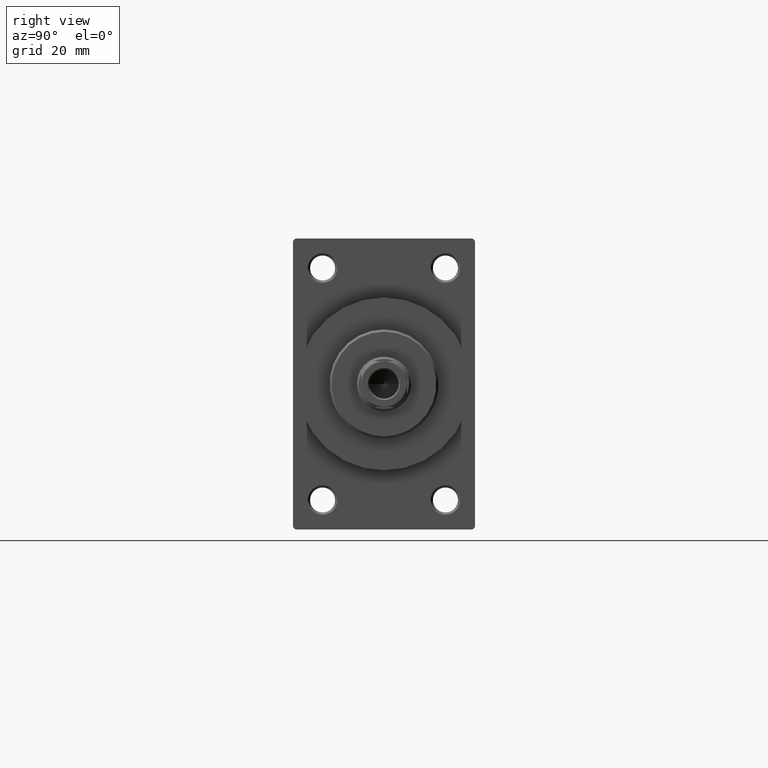
[diagram: clean part render]
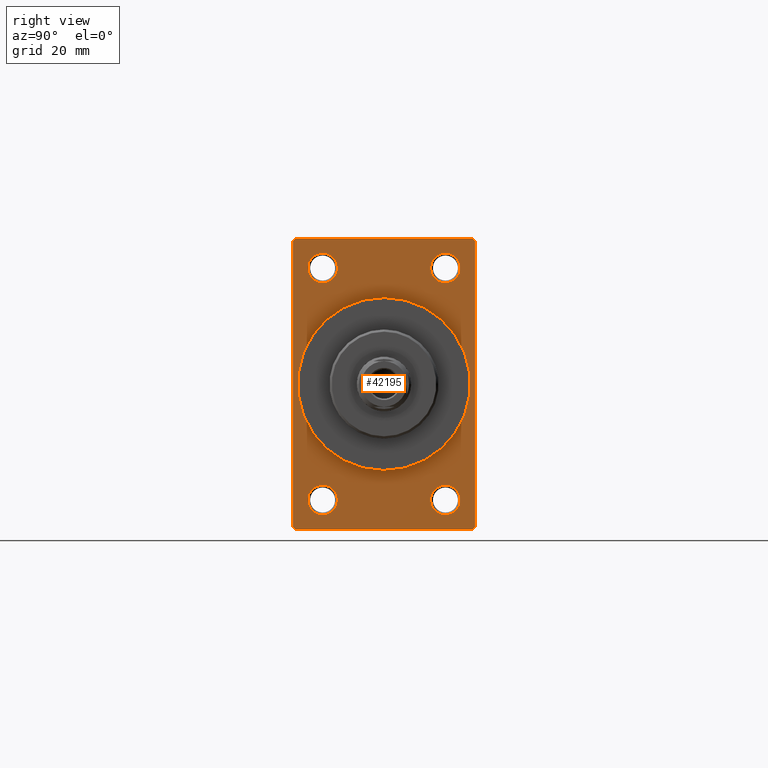
[diagram: same view with one face highlighted and labeled with its STEP entity id]
A machine part, right view. The second image highlights one B-rep face of the part: STEP entity #42195.
In plain terms, the highlighted planar face has unit normal (-1, 0, 0).
Its self-contained STEP definition (entity closure, byte-faithful):
#214 = EDGE_LOOP ( 'NONE', ( #3552, #37022, #43411, #3712, #41467, #40262, #20080, #6694 ) ) ;
#557 = CARTESIAN_POINT ( 'NONE',  ( 109.0000000000000142, -13.50000000000000533, -25.49999999999999645 ) ) ;
#936 = DIRECTION ( 'NONE',  ( -1.000000000000000000, -0.000000000000000000, -0.000000000000000000 ) ) ;
#1102 = CARTESIAN_POINT ( 'NONE',  ( 109.0000000000000142, 20.00000000000000000, -31.49999999999998579 ) ) ;
#1627 = AXIS2_PLACEMENT_3D ( 'NONE', #10410, #9951, #13056 ) ;
#2204 = VECTOR ( 'NONE', #15846, 1000.000000000000114 ) ;
#2228 = VERTEX_POINT ( 'NONE', #2524 ) ;
#2354 = CIRCLE ( 'NONE', #25114, 3.249999999999961364 ) ;
#2378 = VERTEX_POINT ( 'NONE', #11763 ) ;
#2460 = ORIENTED_EDGE ( 'NONE', *, *, #45658, .T. ) ;
#2471 = VERTEX_POINT ( 'NONE', #44372 ) ;
#2524 = CARTESIAN_POINT ( 'NONE',  ( 109.0000000000000142, 19.49999999999998579, -32.00000000000000000 ) ) ;
#2679 = EDGE_CURVE ( 'NONE', #4216, #24126, #2354, .T. ) ;
#2764 = FACE_OUTER_BOUND ( 'NONE', #214, .T. ) ;
#3552 = ORIENTED_EDGE ( 'NONE', *, *, #13119, .T. ) ;
#3712 = ORIENTED_EDGE ( 'NONE', *, *, #16949, .T. ) ;
#4151 = VERTEX_POINT ( 'NONE', #38135 ) ;
#4216 = VERTEX_POINT ( 'NONE', #34555 ) ;
#4310 = ORIENTED_EDGE ( 'NONE', *, *, #40661, .T. ) ;
#4698 = EDGE_CURVE ( 'NONE', #40309, #27239, #15810, .T. ) ;
#4791 = CARTESIAN_POINT ( 'NONE',  ( 109.0000000000000142, 13.49999999999999822, -22.24999999999999645 ) ) ;
#6158 = EDGE_LOOP ( 'NONE', ( #18316, #2460 ) ) ;
#6231 = VECTOR ( 'NONE', #23651, 1000.000000000000000 ) ;
#6344 = EDGE_CURVE ( 'NONE', #34826, #4151, #33670, .T. ) ;
#6468 = CARTESIAN_POINT ( 'NONE',  ( 109.0000000000000142, -13.50000000000000533, -22.24999999999999289 ) ) ;
#6694 = ORIENTED_EDGE ( 'NONE', *, *, #17323, .T. ) ;
#6782 = DIRECTION ( 'NONE',  ( 0.000000000000000000, 0.000000000000000000, -1.000000000000000000 ) ) ;
#7019 = VECTOR ( 'NONE', #29549, 1000.000000000000000 ) ;
#7078 = CARTESIAN_POINT ( 'NONE',  ( 109.0000000000000142, 20.00000000000000000, 32.00000000000000000 ) ) ;
#7380 = EDGE_CURVE ( 'NONE', #2228, #27239, #27234, .T. ) ;
#7558 = CIRCLE ( 'NONE', #39506, 3.250000000000002665 ) ;
#7963 = ORIENTED_EDGE ( 'NONE', *, *, #2679, .T. ) ;
#8187 = VERTEX_POINT ( 'NONE', #4791 ) ;
#8200 = CARTESIAN_POINT ( 'NONE',  ( 109.0000000000000142, -13.50000000000000533, -25.49999999999999645 ) ) ;
#8797 = CIRCLE ( 'NONE', #14115, 3.250000000000002665 ) ;
#9062 = VERTEX_POINT ( 'NONE', #41048 ) ;
#9172 = CARTESIAN_POINT ( 'NONE',  ( 109.0000000000000142, 20.00000000000000000, -32.00000000000000000 ) ) ;
#9425 = CIRCLE ( 'NONE', #36004, 3.249999999999961364 ) ;
#9925 = CARTESIAN_POINT ( 'NONE',  ( 109.0000000000000142, 13.49999999999999822, -25.50000000000000000 ) ) ;
#9951 = DIRECTION ( 'NONE',  ( 1.000000000000000000, 0.000000000000000000, 0.000000000000000000 ) ) ;
#10012 = CARTESIAN_POINT ( 'NONE',  ( 109.0000000000000142, -20.00000000000000000, -31.49999999999997868 ) ) ;
#10153 = DIRECTION ( 'NONE',  ( -0.000000000000000000, 0.000000000000000000, 1.000000000000000000 ) ) ;
#10410 = CARTESIAN_POINT ( 'NONE',  ( 109.0000000000000142, 0.000000000000000000, 0.000000000000000000 ) ) ;
#11001 = CARTESIAN_POINT ( 'NONE',  ( 109.0000000000000142, 20.00000000000000000, 31.49999999999998579 ) ) ;
#11166 = AXIS2_PLACEMENT_3D ( 'NONE', #33545, #936, #25665 ) ;
#11172 = CARTESIAN_POINT ( 'NONE',  ( 109.0000000000000142, 20.00000000000000000, -31.49999999999998579 ) ) ;
#11676 = VECTOR ( 'NONE', #36120, 1000.000000000000000 ) ;
#11763 = CARTESIAN_POINT ( 'NONE',  ( 109.0000000000000142, -19.49999999999998579, 31.99999999999999289 ) ) ;
#13056 = DIRECTION ( 'NONE',  ( 0.000000000000000000, 0.000000000000000000, -1.000000000000000000 ) ) ;
#13119 = EDGE_CURVE ( 'NONE', #19989, #40309, #39184, .T. ) ;
#13391 = AXIS2_PLACEMENT_3D ( 'NONE', #557, #19111, #44137 ) ;
#13488 = FACE_BOUND ( 'NONE', #33249, .T. ) ;
#13528 = CARTESIAN_POINT ( 'NONE',  ( 109.0000000000000142, -13.50000000000000178, 25.50000000000000355 ) ) ;
#13960 = DIRECTION ( 'NONE',  ( -1.000000000000000000, -0.000000000000000000, -0.000000000000000000 ) ) ;
#14011 = VECTOR ( 'NONE', #6782, 1000.000000000000000 ) ;
#14115 = AXIS2_PLACEMENT_3D ( 'NONE', #28023, #27794, #34714 ) ;
#14216 = EDGE_CURVE ( 'NONE', #42793, #31605, #33091, .T. ) ;
#14280 = CARTESIAN_POINT ( 'NONE',  ( 109.0000000000000142, -13.50000000000000533, -28.74999999999999645 ) ) ;
#14631 = EDGE_LOOP ( 'NONE', ( #42800, #26683 ) ) ;
#15434 = VECTOR ( 'NONE', #41282, 1000.000000000000114 ) ;
#15559 = LINE ( 'NONE', #41521, #15434 ) ;
#15810 = LINE ( 'NONE', #33906, #45798 ) ;
#15846 = DIRECTION ( 'NONE',  ( -0.000000000000000000, -0.7071067811865474617, -0.7071067811865474617 ) ) ;
#16099 = DIRECTION ( 'NONE',  ( -1.000000000000000000, -0.000000000000000000, -0.000000000000000000 ) ) ;
#16949 = EDGE_CURVE ( 'NONE', #2228, #18154, #33758, .T. ) ;
#17152 = DIRECTION ( 'NONE',  ( 0.000000000000000000, 0.000000000000000000, 1.000000000000000000 ) ) ;
#17269 = CARTESIAN_POINT ( 'NONE',  ( 109.0000000000000142, 0.000000000000000000, 0.000000000000000000 ) ) ;
#17323 = EDGE_CURVE ( 'NONE', #2378, #19989, #42045, .T. ) ;
#17572 = CIRCLE ( 'NONE', #1627, 19.00000000000000000 ) ;
#17741 = DIRECTION ( 'NONE',  ( 0.000000000000000000, 0.000000000000000000, -1.000000000000000000 ) ) ;
#18147 = VECTOR ( 'NONE', #22771, 1000.000000000000114 ) ;
#18154 = VERTEX_POINT ( 'NONE', #1102 ) ;
#18316 = ORIENTED_EDGE ( 'NONE', *, *, #14216, .T. ) ;
#18634 = CIRCLE ( 'NONE', #21658, 3.250000000000002665 ) ;
#19111 = DIRECTION ( 'NONE',  ( -1.000000000000000000, -0.000000000000000000, -0.000000000000000000 ) ) ;
#19560 = CARTESIAN_POINT ( 'NONE',  ( 109.0000000000000142, 20.00000000000000000, 32.00000000000000000 ) ) ;
#19794 = CARTESIAN_POINT ( 'NONE',  ( 109.0000000000000142, -20.00000000000000000, 31.49999999999997868 ) ) ;
#19989 = VERTEX_POINT ( 'NONE', #19794 ) ;
#20080 = ORIENTED_EDGE ( 'NONE', *, *, #35223, .T. ) ;
#20596 = FACE_BOUND ( 'NONE', #14631, .T. ) ;
#20714 = CARTESIAN_POINT ( 'NONE',  ( 109.0000000000000142, 13.49999999999999822, 25.50000000000000355 ) ) ;
#20776 = VERTEX_POINT ( 'NONE', #47035 ) ;
#21658 = AXIS2_PLACEMENT_3D ( 'NONE', #13528, #45685, #42572 ) ;
#21973 = DIRECTION ( 'NONE',  ( 0.000000000000000000, 0.7071067811865426878, -0.7071067811865524577 ) ) ;
#22215 = CARTESIAN_POINT ( 'NONE',  ( 109.0000000000000142, 0.000000000000000000, 0.000000000000000000 ) ) ;
#22771 = DIRECTION ( 'NONE',  ( -0.000000000000000000, 0.7071067811865474617, 0.7071067811865474617 ) ) ;
#23191 = ORIENTED_EDGE ( 'NONE', *, *, #30945, .T. ) ;
#23651 = DIRECTION ( 'NONE',  ( 0.000000000000000000, -1.000000000000000000, 0.000000000000000000 ) ) ;
#23847 = ORIENTED_EDGE ( 'NONE', *, *, #25663, .F. ) ;
#24025 = CARTESIAN_POINT ( 'NONE',  ( 109.0000000000000142, 2.326828918379970970E-15, -19.00000000000000000 ) ) ;
#24042 = AXIS2_PLACEMENT_3D ( 'NONE', #17269, #46335, #10153 ) ;
#24126 = VERTEX_POINT ( 'NONE', #32051 ) ;
#24275 = DIRECTION ( 'NONE',  ( -1.000000000000000000, -0.000000000000000000, -0.000000000000000000 ) ) ;
#24393 = FACE_BOUND ( 'NONE', #6158, .T. ) ;
#25114 = AXIS2_PLACEMENT_3D ( 'NONE', #26789, #16099, #30853 ) ;
#25249 = EDGE_LOOP ( 'NONE', ( #23191, #7963 ) ) ;
#25372 = LINE ( 'NONE', #7078, #11676 ) ;
#25663 = EDGE_CURVE ( 'NONE', #4151, #34826, #17572, .T. ) ;
#25665 = DIRECTION ( 'NONE',  ( 0.000000000000000000, 0.000000000000000000, 1.000000000000000000 ) ) ;
#25792 = DIRECTION ( 'NONE',  ( 1.000000000000000000, 0.000000000000000000, 0.000000000000000000 ) ) ;
#26338 = CIRCLE ( 'NONE', #37002, 3.250000000000002665 ) ;
#26683 = ORIENTED_EDGE ( 'NONE', *, *, #40696, .T. ) ;
#26789 = CARTESIAN_POINT ( 'NONE',  ( 109.0000000000000142, 13.49999999999999822, 25.50000000000000355 ) ) ;
#27118 = CIRCLE ( 'NONE', #11166, 3.250000000000002665 ) ;
#27234 = LINE ( 'NONE', #9172, #6231 ) ;
#27239 = VERTEX_POINT ( 'NONE', #27910 ) ;
#27794 = DIRECTION ( 'NONE',  ( -1.000000000000000000, -0.000000000000000000, -0.000000000000000000 ) ) ;
#27910 = CARTESIAN_POINT ( 'NONE',  ( 109.0000000000000142, -19.49999999999998579, -32.00000000000000000 ) ) ;
#27980 = FACE_BOUND ( 'NONE', #25249, .T. ) ;
#28023 = CARTESIAN_POINT ( 'NONE',  ( 109.0000000000000142, 13.49999999999999822, -25.50000000000000000 ) ) ;
#28522 = VERTEX_POINT ( 'NONE', #31223 ) ;
#29412 = EDGE_CURVE ( 'NONE', #38237, #18154, #30036, .T. ) ;
#29549 = DIRECTION ( 'NONE',  ( 0.000000000000000000, 0.000000000000000000, -1.000000000000000000 ) ) ;
#30036 = LINE ( 'NONE', #19560, #7019 ) ;
#30853 = DIRECTION ( 'NONE',  ( 0.000000000000000000, 0.000000000000000000, 1.000000000000000000 ) ) ;
#30945 = EDGE_CURVE ( 'NONE', #24126, #4216, #9425, .T. ) ;
#31223 = CARTESIAN_POINT ( 'NONE',  ( 109.0000000000000142, 19.49999999999998579, 32.00000000000000000 ) ) ;
#31341 = DIRECTION ( 'NONE',  ( 0.000000000000000000, 0.000000000000000000, 1.000000000000000000 ) ) ;
#31605 = VERTEX_POINT ( 'NONE', #6468 ) ;
#32051 = CARTESIAN_POINT ( 'NONE',  ( 109.0000000000000142, 13.49999999999999822, 22.25000000000004263 ) ) ;
#33091 = CIRCLE ( 'NONE', #13391, 3.250000000000002665 ) ;
#33249 = EDGE_LOOP ( 'NONE', ( #4310, #34235 ) ) ;
#33545 = CARTESIAN_POINT ( 'NONE',  ( 109.0000000000000142, -13.50000000000000178, 25.50000000000000355 ) ) ;
#33670 = CIRCLE ( 'NONE', #45876, 19.00000000000000000 ) ;
#33758 = LINE ( 'NONE', #11172, #18147 ) ;
#33906 = CARTESIAN_POINT ( 'NONE',  ( 109.0000000000000142, -19.49999999999998579, -32.00000000000000000 ) ) ;
#34180 = CARTESIAN_POINT ( 'NONE',  ( 109.0000000000000142, -20.00000000000000000, 31.49999999999997868 ) ) ;
#34235 = ORIENTED_EDGE ( 'NONE', *, *, #43061, .T. ) ;
#34367 = EDGE_CURVE ( 'NONE', #38237, #28522, #15559, .T. ) ;
#34555 = CARTESIAN_POINT ( 'NONE',  ( 109.0000000000000142, 13.49999999999999822, 28.74999999999996803 ) ) ;
#34626 = DIRECTION ( 'NONE',  ( 0.000000000000000000, 0.000000000000000000, 1.000000000000000000 ) ) ;
#34714 = DIRECTION ( 'NONE',  ( 0.000000000000000000, 0.000000000000000000, 1.000000000000000000 ) ) ;
#34826 = VERTEX_POINT ( 'NONE', #24025 ) ;
#35223 = EDGE_CURVE ( 'NONE', #28522, #2378, #25372, .T. ) ;
#35374 = FACE_BOUND ( 'NONE', #41125, .T. ) ;
#36004 = AXIS2_PLACEMENT_3D ( 'NONE', #20714, #24275, #17152 ) ;
#36120 = DIRECTION ( 'NONE',  ( 0.000000000000000000, -1.000000000000000000, -1.734723475976807094E-16 ) ) ;
#37002 = AXIS2_PLACEMENT_3D ( 'NONE', #9925, #13960, #31341 ) ;
#37022 = ORIENTED_EDGE ( 'NONE', *, *, #4698, .T. ) ;
#37729 = DIRECTION ( 'NONE',  ( -1.000000000000000000, -0.000000000000000000, -0.000000000000000000 ) ) ;
#38135 = CARTESIAN_POINT ( 'NONE',  ( 109.0000000000000142, 0.000000000000000000, 19.00000000000000000 ) ) ;
#38237 = VERTEX_POINT ( 'NONE', #11001 ) ;
#38260 = PLANE ( 'NONE',  #24042 ) ;
#39184 = LINE ( 'NONE', #42287, #14011 ) ;
#39506 = AXIS2_PLACEMENT_3D ( 'NONE', #8200, #37729, #34626 ) ;
#40262 = ORIENTED_EDGE ( 'NONE', *, *, #34367, .T. ) ;
#40309 = VERTEX_POINT ( 'NONE', #10012 ) ;
#40661 = EDGE_CURVE ( 'NONE', #9062, #8187, #8797, .T. ) ;
#40696 = EDGE_CURVE ( 'NONE', #20776, #2471, #18634, .T. ) ;
#41048 = CARTESIAN_POINT ( 'NONE',  ( 109.0000000000000142, 13.49999999999999822, -28.75000000000000000 ) ) ;
#41125 = EDGE_LOOP ( 'NONE', ( #23847, #46529 ) ) ;
#41282 = DIRECTION ( 'NONE',  ( 0.000000000000000000, -0.7071067811865474617, 0.7071067811865474617 ) ) ;
#41467 = ORIENTED_EDGE ( 'NONE', *, *, #29412, .F. ) ;
#41521 = CARTESIAN_POINT ( 'NONE',  ( 109.0000000000000142, 19.49999999999998579, 32.00000000000000000 ) ) ;
#42045 = LINE ( 'NONE', #34180, #2204 ) ;
#42195 = ADVANCED_FACE ( 'NONE', ( #20596, #24393, #13488, #27980, #35374, #2764 ), #38260, .F. ) ;
#42287 = CARTESIAN_POINT ( 'NONE',  ( 109.0000000000000142, -20.00000000000000000, 31.99999999999999289 ) ) ;
#42572 = DIRECTION ( 'NONE',  ( 0.000000000000000000, 0.000000000000000000, 1.000000000000000000 ) ) ;
#42793 = VERTEX_POINT ( 'NONE', #14280 ) ;
#42800 = ORIENTED_EDGE ( 'NONE', *, *, #43771, .T. ) ;
#43061 = EDGE_CURVE ( 'NONE', #8187, #9062, #26338, .T. ) ;
#43411 = ORIENTED_EDGE ( 'NONE', *, *, #7380, .F. ) ;
#43771 = EDGE_CURVE ( 'NONE', #2471, #20776, #27118, .T. ) ;
#44137 = DIRECTION ( 'NONE',  ( 0.000000000000000000, 0.000000000000000000, 1.000000000000000000 ) ) ;
#44372 = CARTESIAN_POINT ( 'NONE',  ( 109.0000000000000142, -13.50000000000000178, 22.25000000000000000 ) ) ;
#45658 = EDGE_CURVE ( 'NONE', #31605, #42793, #7558, .T. ) ;
#45685 = DIRECTION ( 'NONE',  ( -1.000000000000000000, -0.000000000000000000, -0.000000000000000000 ) ) ;
#45798 = VECTOR ( 'NONE', #21973, 1000.000000000000000 ) ;
#45876 = AXIS2_PLACEMENT_3D ( 'NONE', #22215, #25792, #17741 ) ;
#46335 = DIRECTION ( 'NONE',  ( -1.000000000000000000, 0.000000000000000000, -0.000000000000000000 ) ) ;
#46529 = ORIENTED_EDGE ( 'NONE', *, *, #6344, .F. ) ;
#47035 = CARTESIAN_POINT ( 'NONE',  ( 109.0000000000000142, -13.50000000000000178, 28.75000000000000355 ) ) ;